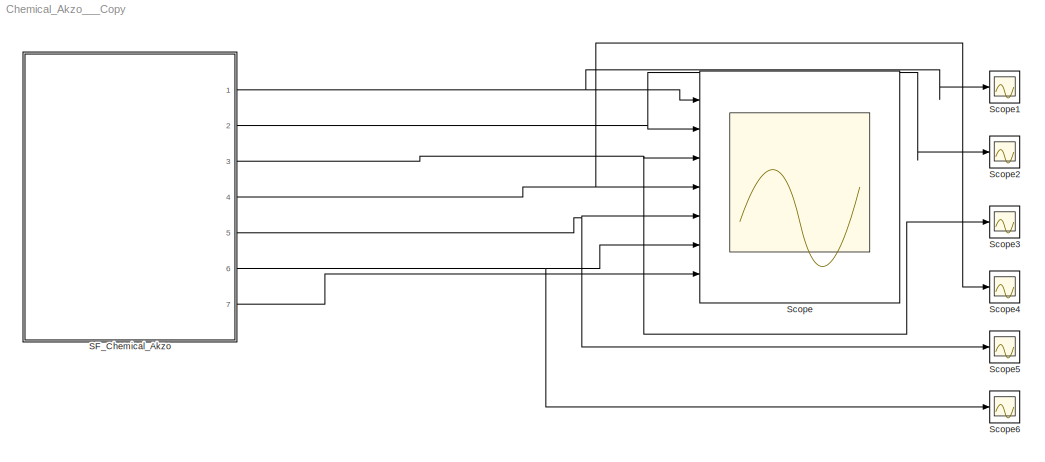
MODEL Chemical_Akzo___Copy
KIND model
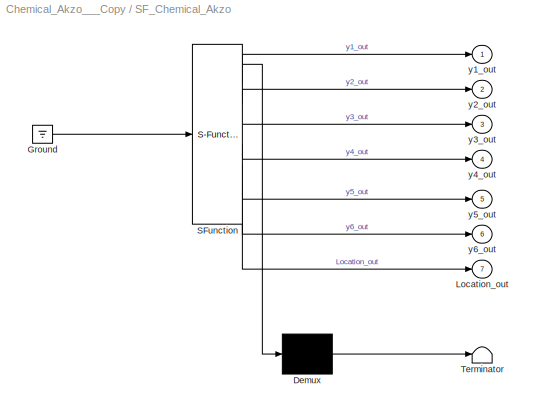
BLOCK [SubSystem] SF_Chemical_Akzo
  ErrorFcn = Stateflow.Translate.translate
  PermitHierarchicalResolution = ExplicitOnly
  Ports = [0, 7]
  RequestExecContextInheritance = off
  SFBlockType = Chart
  SID = 1
  TreatAsAtomicUnit = on
BLOCK [Demux] SF_Chemical_Akzo/ Demux 
  Outputs = 1
  Ports = [1, 1]
  SID = 1::73
BLOCK [Ground] SF_Chemical_Akzo/ Ground 
  SID = 1::75
BLOCK [S-Function] SF_Chemical_Akzo/ SFunction 
  EnableBusSupport = off
  FunctionName = sf_sfun
  PortCounts = [1 8]
  Ports = [1, 8]
  SFcnIsStateOwnerBlock = off
  SFunctionDeploymentMode = off
  SID = 1::72
  Tag = Stateflow S-Function 3
BLOCK [Terminator] SF_Chemical_Akzo/ Terminator 
  SID = 1::74
BLOCK [Outport] SF_Chemical_Akzo/Location_out
  IconDisplay = Port number
  Port = 7
  SID = 1::71
BLOCK [Outport] SF_Chemical_Akzo/y1_out
  IconDisplay = Port number
  SID = 1::65
BLOCK [Outport] SF_Chemical_Akzo/y2_out
  IconDisplay = Port number
  Port = 2
  SID = 1::66
BLOCK [Outport] SF_Chemical_Akzo/y3_out
  IconDisplay = Port number
  Port = 3
  SID = 1::67
BLOCK [Outport] SF_Chemical_Akzo/y4_out
  IconDisplay = Port number
  Port = 4
  SID = 1::68
BLOCK [Outport] SF_Chemical_Akzo/y5_out
  IconDisplay = Port number
  Port = 5
  SID = 1::69
BLOCK [Outport] SF_Chemical_Akzo/y6_out
  IconDisplay = Port number
  Port = 6
  SID = 1::70
BLOCK [Scope] Scope
  Floating = off
  NumInputPorts = 7
  Ports = [7]
  SID = 2
  ScopeSpecificationString = C++SS(StrPVP('Location','[1, 53, 1601, 851]'),StrPVP('Open','off'),MxPVP('AxesTitles',54,'struct(''axes1'',''%<SignalLabel>'',''axes2'',''%<SignalLabel>'',''axes3'',''%<SignalLabel>'',''axes4'',''%<SignalLabel>'',''axes5'',''%<SignalLabel>'',''axes6'',''%<SignalLabel>'',''axes7'',''%<SignalLabel>'')'),MxPVP('ScopeGraphics',57,'struct(''FigureColor'',''[0.5 0.5 0.5]'',''AxesColor'',''[0 0 0]'',''Ax...<+469ch>
BLOCK [Scope] Scope1
  Floating = off
  NumInputPorts = 1
  Ports = [1]
  SID = 3
  ScopeSpecificationString = C++SS(StrPVP('Location','[2844, 485, 3168, 724]'),StrPVP('Open','off'),MxPVP('AxesTitles',54,'struct(''axes1'',''%<SignalLabel>'')'),MxPVP('ScopeGraphics',57,'struct(''FigureColor'',''[0.5 0.5 0.5]'',''AxesColor'',''[0 0 0]'',''AxesTickColor'',''[1 1 1]'',''LineColors'',''[1 1 0;1 0 1;0 1 1;1 0 0;0 1 0;0 0 1]'',''LineStyles'',''-|-|-|-|-|-'',''LineWidths'',''[0.5 0.5 0.5 0.5 0.5 0.5]'',''MarkerSty...<+258ch>
BLOCK [Scope] Scope2
  Floating = off
  NumInputPorts = 1
  Ports = [1]
  SID = 9
  ScopeSpecificationString = C++SS(StrPVP('Location','[188, 365, 512, 604]'),StrPVP('Open','off'),MxPVP('AxesTitles',54,'struct(''axes1'',''%<SignalLabel>'')'),MxPVP('ScopeGraphics',57,'struct(''FigureColor'',''[0.5 0.5 0.5]'',''AxesColor'',''[0 0 0]'',''AxesTickColor'',''[1 1 1]'',''LineColors'',''[1 1 0;1 0 1;0 1 1;1 0 0;0 1 0;0 0 1]'',''LineStyles'',''-|-|-|-|-|-'',''LineWidths'',''[0.5 0.5 0.5 0.5 0.5 0.5]'',''MarkerStyle...<+256ch>  <repeated x5 — deduplicated; at blocks: Scope2, Scope3, Scope4, Scope5, Scope6>
BLOCK [Scope] Scope3
  Floating = off
  NumInputPorts = 1
  Ports = [1]
  SID = 10
BLOCK [Scope] Scope4
  Floating = off
  NumInputPorts = 1
  Ports = [1]
  SID = 11
BLOCK [Scope] Scope5
  Floating = off
  NumInputPorts = 1
  Ports = [1]
  SID = 12
BLOCK [Scope] Scope6
  Floating = off
  NumInputPorts = 1
  Ports = [1]
  SID = 13
LINE SF_Chemical_Akzo/ Demux :1 -> SF_Chemical_Akzo/ Terminator :1
LINE SF_Chemical_Akzo/ Ground :1 -> SF_Chemical_Akzo/ SFunction :1
LINE SF_Chemical_Akzo/ SFunction :1 -> SF_Chemical_Akzo/ Demux :1
LINE SF_Chemical_Akzo/ SFunction :2 -> SF_Chemical_Akzo/y1_out:1
LINE SF_Chemical_Akzo/ SFunction :3 -> SF_Chemical_Akzo/y2_out:1
LINE SF_Chemical_Akzo/ SFunction :4 -> SF_Chemical_Akzo/y3_out:1
LINE SF_Chemical_Akzo/ SFunction :5 -> SF_Chemical_Akzo/y4_out:1
LINE SF_Chemical_Akzo/ SFunction :6 -> SF_Chemical_Akzo/y5_out:1
LINE SF_Chemical_Akzo/ SFunction :7 -> SF_Chemical_Akzo/y6_out:1
LINE SF_Chemical_Akzo/ SFunction :8 -> SF_Chemical_Akzo/Location_out:1
NET SF_Chemical_Akzo:1 -> Scope1:1, Scope:1
NET SF_Chemical_Akzo:2 -> Scope2:1, Scope:2
NET SF_Chemical_Akzo:3 -> Scope3:1, Scope:3
NET SF_Chemical_Akzo:4 -> Scope4:1, Scope:4
NET SF_Chemical_Akzo:5 -> Scope5:1, Scope:5
NET SF_Chemical_Akzo:6 -> Scope6:1, Scope:6
LINE SF_Chemical_Akzo:7 -> Scope:7
note: NET lines group one-source signal fan-out (src -> all destinations, sorted); 1:1 wires keep LINE
CHART SF_Chemical_Akzo states=1 transitions=1
  STATE_LABEL 'Chemical_Akzo\\ndu:\\ny1_dot=-2*k1*(y1^4)*(y2^0.5)+k2*y3*y4-k2/K*y1*y5-k3*y1*(y4^2);\\ny2_dot=-0.5*k1*(y1^4)*(y2^0.5)-k3*y1*(y4^2)-0.5*k4*(y6^2)*(y2^0.5)+klA*(p_CO2/H-y2);\\ny3_dot=k1*(y1^4)*(y2^0.5)-k2*y3*y4+(k2/K)*y1*y5;\\ny4_dot= -k2*y3*y4+(k2/K)*y1*y5-2*k3*y1*(y4^2);\\ny5_dot=k2*y3*y4-(k2/K)*y1*y5+k4*(y6^2)*(y2^0.5);\\ny6_dot=Ks*(y4*(-2*k1*(y1^4)*(y2^0.5)+k2*y3*y4-k2/K*y1*y5-k3*y1*(y4^2))+y1*(-k2*y3*...<+123ch>'
